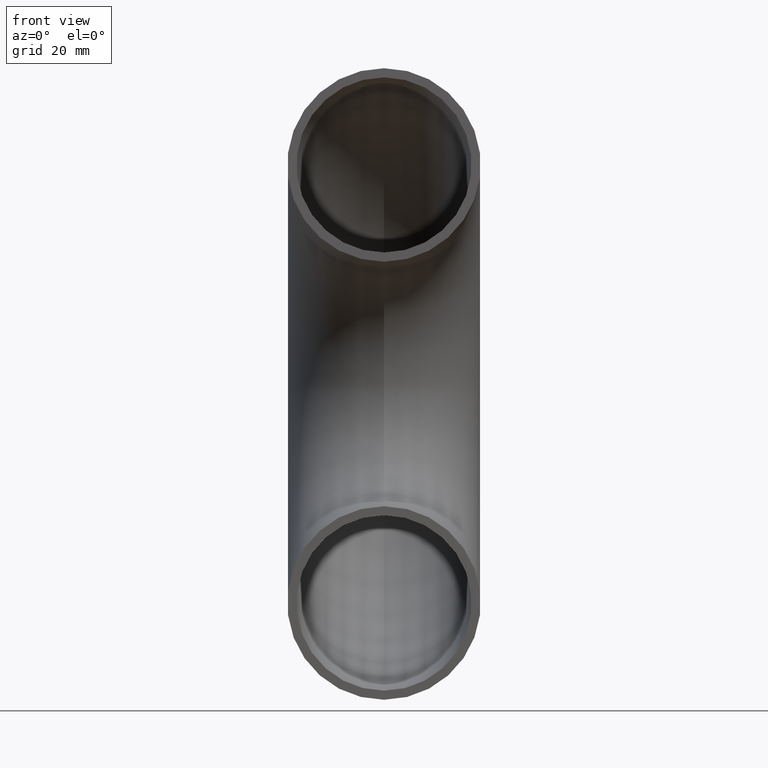
[diagram: clean part render]
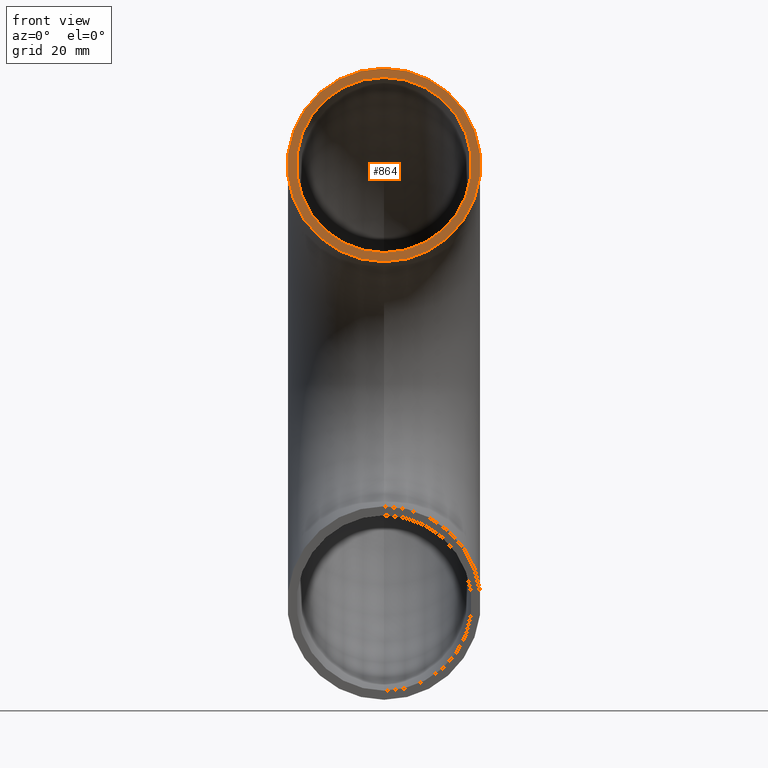
[diagram: same view with one face highlighted and labeled with its STEP entity id]
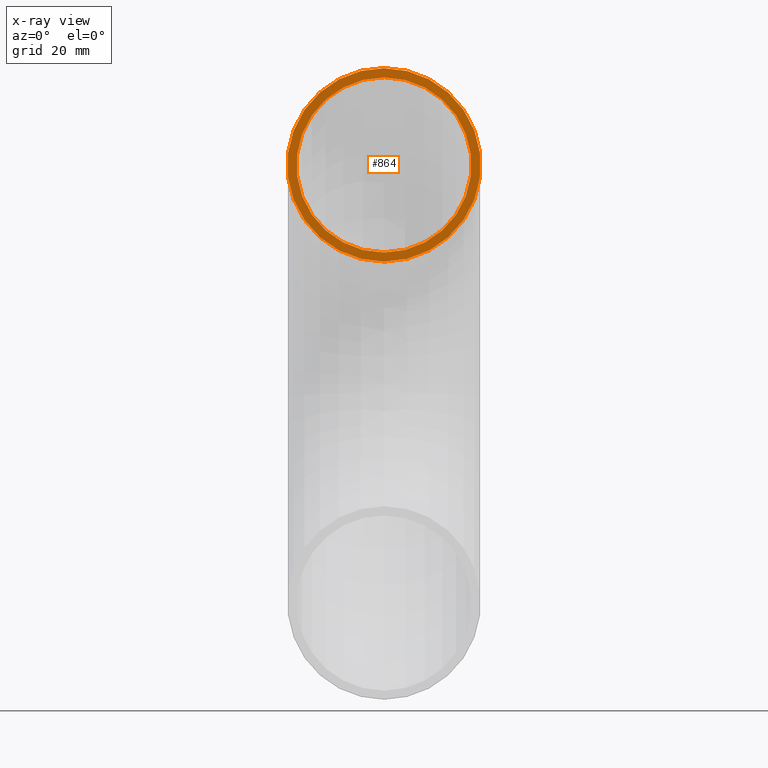
[diagram: x-ray of the same camera — body ghosted, the highlighted face saturated]
A machine part, front view. The second image highlights one B-rep face of the part: STEP entity #864.
The next image is the same camera in x-ray: the body ghosted, the highlighted face saturated — about 0% of this face is hidden behind the body in this view.
In plain terms, the highlighted planar face has unit normal (0, -1, 0).
Its self-contained STEP definition (entity closure, byte-faithful):
#255 = AXIS2_PLACEMENT_3D ( 'NONE', #2638, #5167, #5097 ) ;
#348 = PLANE ( 'NONE',  #255 ) ;
#579 = EDGE_CURVE ( 'NONE', #6747, #1486, #5435, .T. ) ;
#616 = CARTESIAN_POINT ( 'NONE',  ( 0.0000000000000000000, 8.229626490270214300E-015, 67.20000000000000300 ) ) ;
#864 = ADVANCED_FACE ( 'NONE', ( #10032, #8999 ), #348, .T. ) ;
#1128 = DIRECTION ( 'NONE',  ( 0.0000000000000000000, -1.000000000000000000, 1.224646799147353200E-016 ) ) ;
#1275 = CARTESIAN_POINT ( 'NONE',  ( 0.0000000000000000000, 8.474555850099686100E-015, 69.20000000000000300 ) ) ;
#1328 = CARTESIAN_POINT ( 'NONE',  ( 0.0000000000000000000, 5.878304635907295800E-015, 48.00000000000000000 ) ) ;
#1486 = VERTEX_POINT ( 'NONE', #1275 ) ;
#1836 = CARTESIAN_POINT ( 'NONE',  ( 0.0000000000000000000, 5.878304635907295800E-015, 48.00000000000000000 ) ) ;
#1991 = EDGE_LOOP ( 'NONE', ( #4315, #2578 ) ) ;
#2578 = ORIENTED_EDGE ( 'NONE', *, *, #5821, .T. ) ;
#2595 = DIRECTION ( 'NONE',  ( 0.0000000000000000000, -1.000000000000000000, 1.224646799147353200E-016 ) ) ;
#2638 = CARTESIAN_POINT ( 'NONE',  ( 0.0000000000000000000, 5.878304635907295800E-015, 48.00000000000000000 ) ) ;
#2696 = DIRECTION ( 'NONE',  ( 0.0000000000000000000, -1.224646799147353200E-016, -1.000000000000000000 ) ) ;
#2951 = CIRCLE ( 'NONE', #6249, 19.20000000000000300 ) ;
#3187 = EDGE_LOOP ( 'NONE', ( #3813, #5861 ) ) ;
#3458 = AXIS2_PLACEMENT_3D ( 'NONE', #6772, #1128, #7618 ) ;
#3813 = ORIENTED_EDGE ( 'NONE', *, *, #6957, .F. ) ;
#4235 = VERTEX_POINT ( 'NONE', #4906 ) ;
#4315 = ORIENTED_EDGE ( 'NONE', *, *, #579, .T. ) ;
#4496 = CIRCLE ( 'NONE', #6198, 21.19999999999999900 ) ;
#4772 = CARTESIAN_POINT ( 'NONE',  ( 0.0000000000000000000, 3.282053421714906600E-015, 26.80000000000000100 ) ) ;
#4906 = CARTESIAN_POINT ( 'NONE',  ( 0.0000000000000000000, 3.526982781544376900E-015, 28.80000000000000100 ) ) ;
#5097 = DIRECTION ( 'NONE',  ( 0.0000000000000000000, -1.224646799147353200E-016, -1.000000000000000000 ) ) ;
#5119 = DIRECTION ( 'NONE',  ( 0.0000000000000000000, -1.000000000000000000, 1.224646799147353200E-016 ) ) ;
#5167 = DIRECTION ( 'NONE',  ( 0.0000000000000000000, -1.000000000000000000, 1.224646799147353200E-016 ) ) ;
#5435 = CIRCLE ( 'NONE', #5785, 21.19999999999999900 ) ;
#5444 = DIRECTION ( 'NONE',  ( 0.0000000000000000000, -1.000000000000000000, 1.224646799147353200E-016 ) ) ;
#5785 = AXIS2_PLACEMENT_3D ( 'NONE', #1328, #5444, #10291 ) ;
#5821 = EDGE_CURVE ( 'NONE', #1486, #6747, #4496, .T. ) ;
#5861 = ORIENTED_EDGE ( 'NONE', *, *, #7601, .F. ) ;
#6020 = VERTEX_POINT ( 'NONE', #616 ) ;
#6198 = AXIS2_PLACEMENT_3D ( 'NONE', #10009, #5119, #2696 ) ;
#6249 = AXIS2_PLACEMENT_3D ( 'NONE', #1836, #2595, #9189 ) ;
#6747 = VERTEX_POINT ( 'NONE', #4772 ) ;
#6772 = CARTESIAN_POINT ( 'NONE',  ( 0.0000000000000000000, 5.878304635907295800E-015, 48.00000000000000000 ) ) ;
#6957 = EDGE_CURVE ( 'NONE', #4235, #6020, #8557, .T. ) ;
#7601 = EDGE_CURVE ( 'NONE', #6020, #4235, #2951, .T. ) ;
#7618 = DIRECTION ( 'NONE',  ( 0.0000000000000000000, -1.224646799147353200E-016, -1.000000000000000000 ) ) ;
#8557 = CIRCLE ( 'NONE', #3458, 19.20000000000000300 ) ;
#8999 = FACE_OUTER_BOUND ( 'NONE', #1991, .T. ) ;
#9189 = DIRECTION ( 'NONE',  ( 0.0000000000000000000, -1.224646799147353200E-016, -1.000000000000000000 ) ) ;
#10009 = CARTESIAN_POINT ( 'NONE',  ( 0.0000000000000000000, 5.878304635907295800E-015, 48.00000000000000000 ) ) ;
#10032 = FACE_BOUND ( 'NONE', #3187, .T. ) ;
#10291 = DIRECTION ( 'NONE',  ( 0.0000000000000000000, -1.224646799147353200E-016, -1.000000000000000000 ) ) ;